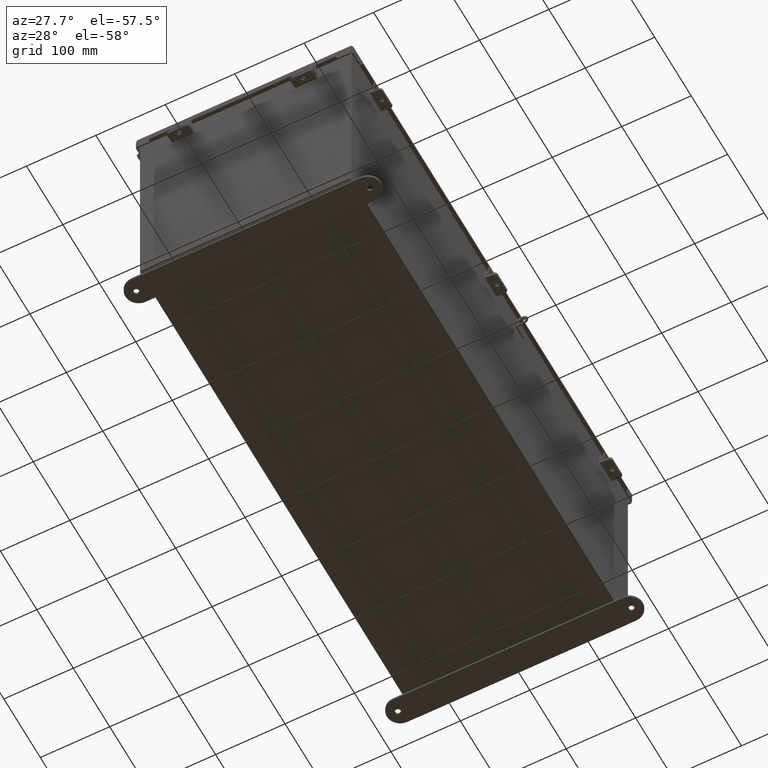
[diagram: clean part render]
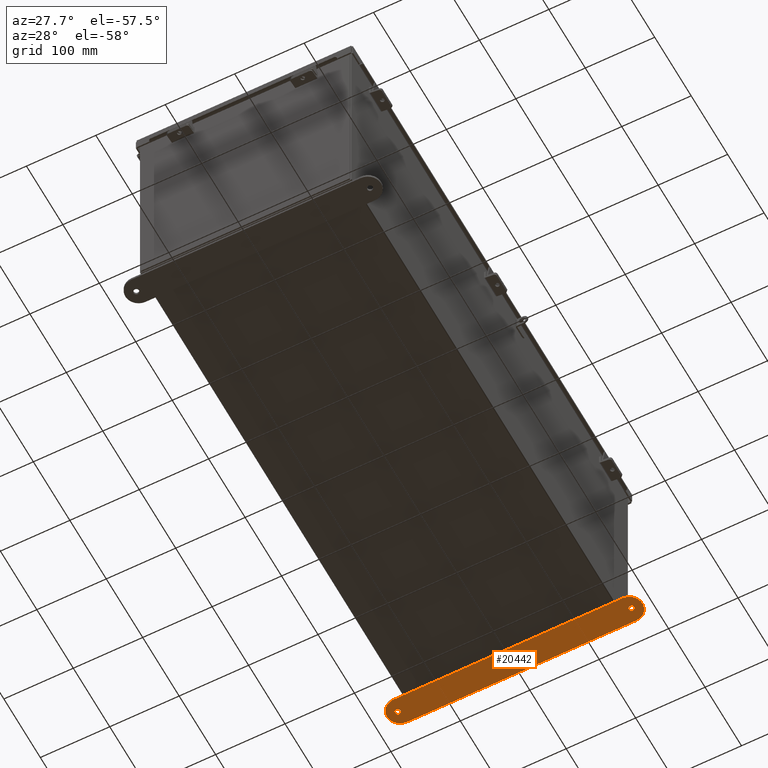
[diagram: same view with one face highlighted and labeled with its STEP entity id]
A machine part, auxiliary view. The second image highlights one B-rep face of the part: STEP entity #20442.
In plain terms, the highlighted planar face has unit normal (0, 0, 1).
Its self-contained STEP definition (entity closure, byte-faithful):
#391 = CARTESIAN_POINT ( 'NONE',  ( -6.500000000000000000, 1.162094064949611600, 0.0000000000000000000 ) ) ;
#582 = EDGE_CURVE ( 'NONE', #24350, #11162, #14227, .T. ) ;
#855 = VECTOR ( 'NONE', #9274, 39.37007874015748100 ) ;
#863 = CARTESIAN_POINT ( 'NONE',  ( -6.625000000000000900, 0.4120940649496089300, 0.0000000000000000000 ) ) ;
#1126 = AXIS2_PLACEMENT_3D ( 'NONE', #19439, #19385, #19327 ) ;
#1129 = DIRECTION ( 'NONE',  ( 1.000000000000000000, 0.0000000000000000000, 0.0000000000000000000 ) ) ;
#1387 = DIRECTION ( 'NONE',  ( 0.0000000000000000000, 0.0000000000000000000, -1.000000000000000000 ) ) ;
#1812 = ORIENTED_EDGE ( 'NONE', *, *, #22556, .T. ) ;
#2481 = DIRECTION ( 'NONE',  ( 0.0000000000000000000, 0.0000000000000000000, 1.000000000000000000 ) ) ;
#2944 = DIRECTION ( 'NONE',  ( 1.000000000000000000, 0.0000000000000000000, 0.0000000000000000000 ) ) ;
#3235 = CARTESIAN_POINT ( 'NONE',  ( -6.500000000000000000, 0.4120940649496132600, 0.0000000000000000000 ) ) ;
#3594 = CARTESIAN_POINT ( 'NONE',  ( -6.500000000000000000, 1.162094064949611600, 0.0000000000000000000 ) ) ;
#4039 = DIRECTION ( 'NONE',  ( 0.0000000000000000000, 0.0000000000000000000, -1.000000000000000000 ) ) ;
#4509 = ORIENTED_EDGE ( 'NONE', *, *, #25092, .F. ) ;
#4616 = CIRCLE ( 'NONE', #1126, 0.7500000000000015500 ) ;
#4794 = CIRCLE ( 'NONE', #23559, 0.7500000000000015500 ) ;
#5235 = DIRECTION ( 'NONE',  ( 1.000000000000000000, 0.0000000000000000000, 0.0000000000000000000 ) ) ;
#5920 = EDGE_CURVE ( 'NONE', #20564, #15269, #6234, .T. ) ;
#6234 = LINE ( 'NONE', #391, #855 ) ;
#7035 = CARTESIAN_POINT ( 'NONE',  ( -6.500000000000000000, -0.3379059350503871900, 0.0000000000000000000 ) ) ;
#7287 = EDGE_LOOP ( 'NONE', ( #1812, #11124 ) ) ;
#7377 = CARTESIAN_POINT ( 'NONE',  ( 6.500000000000000000, 0.4120940649496132600, 0.0000000000000000000 ) ) ;
#7458 = AXIS2_PLACEMENT_3D ( 'NONE', #25170, #13166, #1129 ) ;
#7504 = ORIENTED_EDGE ( 'NONE', *, *, #23551, .T. ) ;
#7893 = CARTESIAN_POINT ( 'NONE',  ( -6.500000000000000000, -0.3379059350503871900, 0.0000000000000000000 ) ) ;
#8057 = EDGE_CURVE ( 'NONE', #10886, #22174, #4794, .T. ) ;
#8249 = CARTESIAN_POINT ( 'NONE',  ( 6.781499999999999400, 0.4120940649496089300, 0.0000000000000000000 ) ) ;
#9274 = DIRECTION ( 'NONE',  ( -1.000000000000000000, -1.260852920152736700E-016, 0.0000000000000000000 ) ) ;
#9360 = FACE_BOUND ( 'NONE', #7287, .T. ) ;
#9739 = CARTESIAN_POINT ( 'NONE',  ( 6.500000000000000000, 1.162094064949613600, 0.0000000000000000000 ) ) ;
#10199 = ORIENTED_EDGE ( 'NONE', *, *, #5920, .T. ) ;
#10456 = CARTESIAN_POINT ( 'NONE',  ( 6.500000000000000000, 0.4120940649496132600, 0.0000000000000000000 ) ) ;
#10886 = VERTEX_POINT ( 'NONE', #18205 ) ;
#11124 = ORIENTED_EDGE ( 'NONE', *, *, #582, .T. ) ;
#11162 = VERTEX_POINT ( 'NONE', #8249 ) ;
#11696 = AXIS2_PLACEMENT_3D ( 'NONE', #23489, #22386, #19196 ) ;
#12475 = DIRECTION ( 'NONE',  ( -1.000000000000000000, 0.0000000000000000000, 0.0000000000000000000 ) ) ;
#12952 = EDGE_CURVE ( 'NONE', #22174, #20564, #4616, .T. ) ;
#12975 = ORIENTED_EDGE ( 'NONE', *, *, #18174, .T. ) ;
#12999 = VERTEX_POINT ( 'NONE', #18126 ) ;
#13063 = EDGE_LOOP ( 'NONE', ( #20389, #25366, #10199, #7504, #12975 ) ) ;
#13132 = AXIS2_PLACEMENT_3D ( 'NONE', #3235, #17264, #5235 ) ;
#13166 = DIRECTION ( 'NONE',  ( 0.0000000000000000000, 0.0000000000000000000, 1.000000000000000000 ) ) ;
#13323 = CARTESIAN_POINT ( 'NONE',  ( -6.468500000000001500, 0.4120940649496089300, 0.0000000000000000000 ) ) ;
#13409 = PLANE ( 'NONE',  #14615 ) ;
#14172 = CIRCLE ( 'NONE', #13132, 0.7499999999999993300 ) ;
#14227 = CIRCLE ( 'NONE', #11696, 0.1564999999999992800 ) ;
#14615 = AXIS2_PLACEMENT_3D ( 'NONE', #7377, #1387, #15429 ) ;
#14628 = CIRCLE ( 'NONE', #23329, 0.1564999999999992800 ) ;
#14925 = DIRECTION ( 'NONE',  ( 0.0000000000000000000, 0.0000000000000000000, 1.000000000000000000 ) ) ;
#15269 = VERTEX_POINT ( 'NONE', #3594 ) ;
#15429 = DIRECTION ( 'NONE',  ( -1.000000000000000000, 0.0000000000000000000, 0.0000000000000000000 ) ) ;
#16060 = CARTESIAN_POINT ( 'NONE',  ( 6.625000000000000900, 0.4120940649496089300, 0.0000000000000000000 ) ) ;
#16130 = EDGE_LOOP ( 'NONE', ( #4509, #17167 ) ) ;
#17167 = ORIENTED_EDGE ( 'NONE', *, *, #21854, .F. ) ;
#17264 = DIRECTION ( 'NONE',  ( 0.0000000000000000000, 0.0000000000000000000, 1.000000000000000000 ) ) ;
#18069 = DIRECTION ( 'NONE',  ( -1.000000000000000000, 0.0000000000000000000, 0.0000000000000000000 ) ) ;
#18126 = CARTESIAN_POINT ( 'NONE',  ( -6.781499999999999400, 0.4120940649496089300, 0.0000000000000000000 ) ) ;
#18174 = EDGE_CURVE ( 'NONE', #20643, #10886, #24461, .T. ) ;
#18205 = CARTESIAN_POINT ( 'NONE',  ( 6.500000000000000000, -0.3379059350503894100, 0.0000000000000000000 ) ) ;
#19196 = DIRECTION ( 'NONE',  ( -1.000000000000000000, 0.0000000000000000000, 0.0000000000000000000 ) ) ;
#19327 = DIRECTION ( 'NONE',  ( -1.000000000000000000, 0.0000000000000000000, 0.0000000000000000000 ) ) ;
#19372 = FACE_OUTER_BOUND ( 'NONE', #13063, .T. ) ;
#19385 = DIRECTION ( 'NONE',  ( 0.0000000000000000000, 0.0000000000000000000, 1.000000000000000000 ) ) ;
#19439 = CARTESIAN_POINT ( 'NONE',  ( 6.500000000000000000, 0.4120940649496132600, 0.0000000000000000000 ) ) ;
#19819 = CARTESIAN_POINT ( 'NONE',  ( 6.468500000000001500, 0.4120940649496089300, 0.0000000000000000000 ) ) ;
#20188 = CIRCLE ( 'NONE', #23177, 0.1564999999999992800 ) ;
#20389 = ORIENTED_EDGE ( 'NONE', *, *, #8057, .T. ) ;
#20442 = ADVANCED_FACE ( 'NONE', ( #19372, #25334, #9360 ), #13409, .F. ) ;
#20564 = VERTEX_POINT ( 'NONE', #9739 ) ;
#20643 = VERTEX_POINT ( 'NONE', #7893 ) ;
#21854 = EDGE_CURVE ( 'NONE', #12999, #24886, #14628, .T. ) ;
#22174 = VERTEX_POINT ( 'NONE', #22744 ) ;
#22234 = CIRCLE ( 'NONE', #7458, 0.1564999999999992800 ) ;
#22386 = DIRECTION ( 'NONE',  ( 0.0000000000000000000, 0.0000000000000000000, -1.000000000000000000 ) ) ;
#22556 = EDGE_CURVE ( 'NONE', #11162, #24350, #20188, .T. ) ;
#22744 = CARTESIAN_POINT ( 'NONE',  ( 7.250000000000001800, 0.4120940649496132600, 0.0000000000000000000 ) ) ;
#23065 = DIRECTION ( 'NONE',  ( 1.000000000000000000, -1.260852920152736700E-016, 0.0000000000000000000 ) ) ;
#23177 = AXIS2_PLACEMENT_3D ( 'NONE', #16060, #4039, #18069 ) ;
#23329 = AXIS2_PLACEMENT_3D ( 'NONE', #863, #14925, #2944 ) ;
#23489 = CARTESIAN_POINT ( 'NONE',  ( 6.625000000000000900, 0.4120940649496089300, 0.0000000000000000000 ) ) ;
#23551 = EDGE_CURVE ( 'NONE', #15269, #20643, #14172, .T. ) ;
#23559 = AXIS2_PLACEMENT_3D ( 'NONE', #10456, #2481, #12475 ) ;
#23821 = VECTOR ( 'NONE', #23065, 39.37007874015748100 ) ;
#24350 = VERTEX_POINT ( 'NONE', #19819 ) ;
#24461 = LINE ( 'NONE', #7035, #23821 ) ;
#24886 = VERTEX_POINT ( 'NONE', #13323 ) ;
#25092 = EDGE_CURVE ( 'NONE', #24886, #12999, #22234, .T. ) ;
#25170 = CARTESIAN_POINT ( 'NONE',  ( -6.625000000000000900, 0.4120940649496089300, 0.0000000000000000000 ) ) ;
#25334 = FACE_BOUND ( 'NONE', #16130, .T. ) ;
#25366 = ORIENTED_EDGE ( 'NONE', *, *, #12952, .T. ) ;